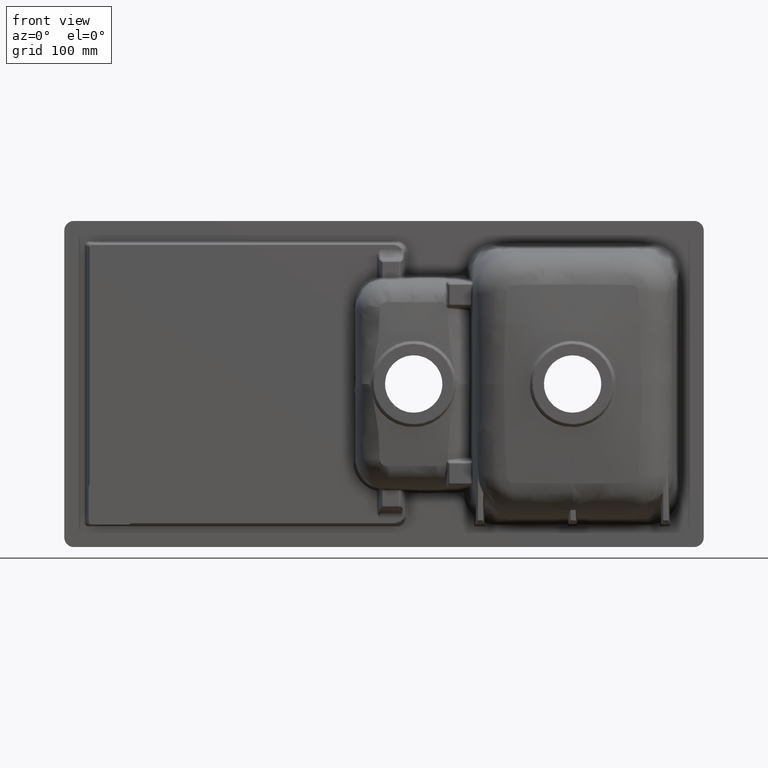
[diagram: clean part render]
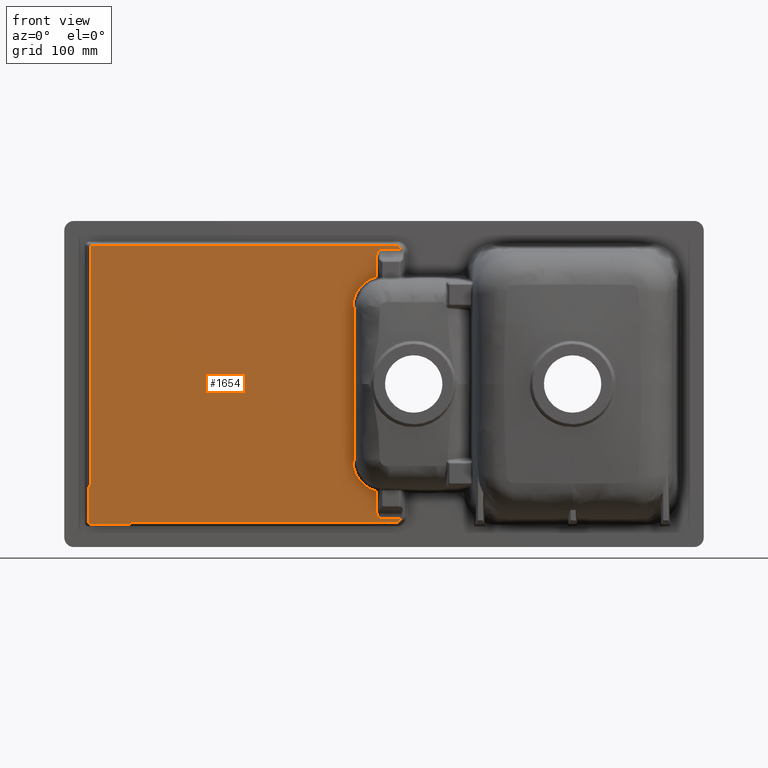
[diagram: same view with one face highlighted and labeled with its STEP entity id]
A machine part, front view. The second image highlights one B-rep face of the part: STEP entity #1654.
In plain terms, the highlighted face is a freeform B-spline surface patch.
Its self-contained STEP definition (entity closure, byte-faithful):
#1654=ADVANCED_FACE('',(#2189),#1732,.T.);
#1732=B_SPLINE_SURFACE_WITH_KNOTS('',1,1,((#62614,#62615),(#62616,#62617)),
 .UNSPECIFIED.,.F.,.F.,.F.,(2,2),(2,2),(0.,1.),(0.,1.),.UNSPECIFIED.);
#2189=FACE_OUTER_BOUND('',#2670,.T.);
#2670=EDGE_LOOP('',(#5322,#5323,#5324,#5325,#5326,#5327,#5328,#5329,#5330,
#5331,#5332,#5333,#5334,#5335,#5336,#5337,#5338,#5339,#5340,#5341,#5342,
#5343,#5344,#5345,#5346));
#3142=B_SPLINE_CURVE_WITH_KNOTS('',3,(#59644,#59645,#59646,#59647,#59648,
#59649,#59650,#59651,#59652,#59653,#59654,#59655,#59656,#59657,#59658),
 .UNSPECIFIED.,.F.,.F.,(4,1,1,2,2,1,2,2,4),(0.,0.125000000000009,0.187500000000012,
0.218750000000012,0.250000000000012,0.375000000000017,0.437500000000016,
0.500000000000016,1.),.UNSPECIFIED.);
#3145=B_SPLINE_CURVE_WITH_KNOTS('',3,(#59697,#59698,#59699,#59700,#59701,
#59702,#59703,#59704,#59705,#59706),.UNSPECIFIED.,.F.,.F.,(4,2,2,2,4),(0.,
0.25,0.5,0.75,1.),.UNSPECIFIED.);
#3146=B_SPLINE_CURVE_WITH_KNOTS('',3,(#59743,#59744,#59745,#59746,#59747,
#59748,#59749,#59750,#59751,#59752,#59753,#59754,#59755,#59756,#59757),
 .UNSPECIFIED.,.F.,.F.,(4,1,1,2,2,1,2,2,4),(0.,0.125000000000005,0.187500000000008,
0.218750000000006,0.250000000000005,0.375000000000004,0.4375,0.499999999999997,
1.),.UNSPECIFIED.);
#3147=B_SPLINE_CURVE_WITH_KNOTS('',1,(#59778,#59779),.UNSPECIFIED.,.F.,
 .F.,(2,2),(0.,1.),.UNSPECIFIED.);
#3148=B_SPLINE_CURVE_WITH_KNOTS('',1,(#59781,#59782),.UNSPECIFIED.,.F.,
 .F.,(2,2),(0.,1.),.UNSPECIFIED.);
#3149=B_SPLINE_CURVE_WITH_KNOTS('',1,(#59786,#59787),.UNSPECIFIED.,.F.,
 .F.,(2,2),(0.,1.),.UNSPECIFIED.);
#3150=B_SPLINE_CURVE_WITH_KNOTS('',3,(#59793,#59794,#59795,#59796,#59797,
#59798),.UNSPECIFIED.,.F.,.F.,(4,2,4),(0.,0.5,1.),.UNSPECIFIED.);
#3151=B_SPLINE_CURVE_WITH_KNOTS('',3,(#59820,#59821,#59822,#59823,#59824,
#59825,#59826,#59827,#59828,#59829,#59830,#59831),.UNSPECIFIED.,.F.,.F.,
(4,2,2,2,2,4),(0.,0.124999999999998,0.249999999999996,0.374999999999994,
0.499999999999992,1.),.UNSPECIFIED.);
#3152=B_SPLINE_CURVE_WITH_KNOTS('',1,(#59846,#59847),.UNSPECIFIED.,.F.,
 .F.,(2,2),(0.,1.),.UNSPECIFIED.);
#3153=B_SPLINE_CURVE_WITH_KNOTS('',3,(#59854,#59855,#59856,#59857,#59858,
#59859),.UNSPECIFIED.,.F.,.F.,(4,2,4),(0.,0.5,1.),.UNSPECIFIED.);
#3154=B_SPLINE_CURVE_WITH_KNOTS('',1,(#59861,#59862),.UNSPECIFIED.,.F.,
 .F.,(2,2),(0.,1.),.UNSPECIFIED.);
#3155=B_SPLINE_CURVE_WITH_KNOTS('',3,(#59866,#59867,#59868,#59869,#59870,
#59871,#59872,#59873,#59874,#59875,#59876,#59877,#59878,#59879),
 .UNSPECIFIED.,.F.,.F.,(4,1,2,2,1,2,2,4),(0.,0.250000000000027,0.375000000000027,
0.500000000000027,0.625000000000027,0.687500000000016,0.750000000000005,
1.),.UNSPECIFIED.);
#3156=B_SPLINE_CURVE_WITH_KNOTS('',3,(#59894,#59895,#59896,#59897,#59898,
#59899),.UNSPECIFIED.,.F.,.F.,(4,2,4),(0.,0.5,1.),.UNSPECIFIED.);
#3157=B_SPLINE_CURVE_WITH_KNOTS('',1,(#59920,#59921),.UNSPECIFIED.,.F.,
 .F.,(2,2),(0.,1.),.UNSPECIFIED.);
#3158=B_SPLINE_CURVE_WITH_KNOTS('',3,(#59925,#59926,#59927,#59928),
 .UNSPECIFIED.,.F.,.F.,(4,4),(0.,1.),.UNSPECIFIED.);
#3159=B_SPLINE_CURVE_WITH_KNOTS('',1,(#59947,#59948),.UNSPECIFIED.,.F.,
 .F.,(2,2),(0.,1.),.UNSPECIFIED.);
#3160=B_SPLINE_CURVE_WITH_KNOTS('',1,(#59950,#59951),.UNSPECIFIED.,.F.,
 .F.,(2,2),(0.,1.),.UNSPECIFIED.);
#3161=B_SPLINE_CURVE_WITH_KNOTS('',1,(#59955,#59956),.UNSPECIFIED.,.F.,
 .F.,(2,2),(0.,1.),.UNSPECIFIED.);
#3162=B_SPLINE_CURVE_WITH_KNOTS('',3,(#59958,#59959,#59960,#59961,#59962,
#59963,#59964,#59965,#59966,#59967,#59968,#59969,#59970,#59971,#59972,#59973),
 .UNSPECIFIED.,.F.,.F.,(4,1,1,2,2,1,1,2,2,4),(0.,0.249999999999992,0.374999999999992,
0.437499999999991,0.499999999999991,0.624999999999996,0.687499999999999,
0.71875,0.750000000000001,1.),.UNSPECIFIED.);
#3173=B_SPLINE_CURVE_WITH_KNOTS('',3,(#62208,#62209,#62210,#62211,#62212,
#62213,#62214,#62215,#62216,#62217),.UNSPECIFIED.,.F.,.F.,(4,2,2,2,4),(0.,
0.25,0.5,0.75,1.),.UNSPECIFIED.);
#3174=B_SPLINE_CURVE_WITH_KNOTS('',3,(#62260,#62261,#62262,#62263,#62264,
#62265,#62266,#62267,#62268,#62269,#62270,#62271,#62272,#62273,#62274,#62275),
 .UNSPECIFIED.,.F.,.F.,(4,1,1,2,2,1,1,2,2,4),(0.,0.250000000000001,0.375000000000002,
0.437499999999999,0.499999999999995,0.624999999999986,0.687499999999981,
0.718749999999976,0.749999999999972,1.),.UNSPECIFIED.);
#3179=B_SPLINE_CURVE_WITH_KNOTS('',1,(#62329,#62330),.UNSPECIFIED.,.F.,
 .F.,(2,2),(0.,1.),.UNSPECIFIED.);
#3180=B_SPLINE_CURVE_WITH_KNOTS('',3,(#62332,#62333,#62334,#62335),
 .UNSPECIFIED.,.F.,.F.,(4,4),(0.,1.),.UNSPECIFIED.);
#3182=B_SPLINE_CURVE_WITH_KNOTS('',3,(#62599,#62600,#62601,#62602,#62603,
#62604,#62605,#62606,#62607,#62608),.UNSPECIFIED.,.F.,.F.,(4,2,2,1,1,4),
(0.,0.0624999999999999,0.125,0.25,0.5,1.),.UNSPECIFIED.);
#3183=B_SPLINE_CURVE_WITH_KNOTS('',3,(#62610,#62611,#62612,#62613),
 .UNSPECIFIED.,.F.,.F.,(4,4),(0.,1.),.UNSPECIFIED.);
#5322=ORIENTED_EDGE('',*,*,#7077,.F.);
#5323=ORIENTED_EDGE('',*,*,#7069,.T.);
#5324=ORIENTED_EDGE('',*,*,#7068,.T.);
#5325=ORIENTED_EDGE('',*,*,#7055,.T.);
#5326=ORIENTED_EDGE('',*,*,#7056,.T.);
#5327=ORIENTED_EDGE('',*,*,#7053,.T.);
#5328=ORIENTED_EDGE('',*,*,#7047,.T.);
#5329=ORIENTED_EDGE('',*,*,#7049,.T.);
#5330=ORIENTED_EDGE('',*,*,#7051,.T.);
#5331=ORIENTED_EDGE('',*,*,#7052,.T.);
#5332=ORIENTED_EDGE('',*,*,#7036,.T.);
#5333=ORIENTED_EDGE('',*,*,#7038,.T.);
#5334=ORIENTED_EDGE('',*,*,#7042,.T.);
#5335=ORIENTED_EDGE('',*,*,#7043,.T.);
#5336=ORIENTED_EDGE('',*,*,#7045,.T.);
#5337=ORIENTED_EDGE('',*,*,#7031,.T.);
#5338=ORIENTED_EDGE('',*,*,#7034,.T.);
#5339=ORIENTED_EDGE('',*,*,#7029,.T.);
#5340=ORIENTED_EDGE('',*,*,#7026,.T.);
#5341=ORIENTED_EDGE('',*,*,#7028,.T.);
#5342=ORIENTED_EDGE('',*,*,#7025,.T.);
#5343=ORIENTED_EDGE('',*,*,#7021,.T.);
#5344=ORIENTED_EDGE('',*,*,#7075,.T.);
#5345=ORIENTED_EDGE('',*,*,#7074,.T.);
#5346=ORIENTED_EDGE('',*,*,#7078,.F.);
#5927=VERTEX_POINT('',#54820);
#5930=VERTEX_POINT('',#54867);
#5931=VERTEX_POINT('',#54904);
#5942=VERTEX_POINT('',#55043);
#5943=VERTEX_POINT('',#55076);
#5959=VERTEX_POINT('',#57433);
#5963=VERTEX_POINT('',#59659);
#5964=VERTEX_POINT('',#59660);
#5966=VERTEX_POINT('',#59758);
#5967=VERTEX_POINT('',#59785);
#5968=VERTEX_POINT('',#59788);
#5970=VERTEX_POINT('',#59818);
#5972=VERTEX_POINT('',#59832);
#5973=VERTEX_POINT('',#59848);
#5974=VERTEX_POINT('',#59853);
#5975=VERTEX_POINT('',#59863);
#5976=VERTEX_POINT('',#59893);
#5977=VERTEX_POINT('',#59919);
#5978=VERTEX_POINT('',#59924);
#5979=VERTEX_POINT('',#59954);
#5983=VERTEX_POINT('',#62190);
#5984=VERTEX_POINT('',#62276);
#5987=VERTEX_POINT('',#62328);
#5988=VERTEX_POINT('',#62331);
#5989=VERTEX_POINT('',#62609);
#7021=EDGE_CURVE('',#5963,#5964,#3142,.T.);
#7025=EDGE_CURVE('',#5927,#5963,#3145,.T.);
#7026=EDGE_CURVE('',#5930,#5966,#3146,.T.);
#7028=EDGE_CURVE('',#5966,#5927,#3147,.T.);
#7029=EDGE_CURVE('',#5931,#5930,#3148,.T.);
#7031=EDGE_CURVE('',#5968,#5967,#3149,.T.);
#7034=EDGE_CURVE('',#5967,#5931,#3150,.T.);
#7036=EDGE_CURVE('',#5972,#5970,#3151,.T.);
#7038=EDGE_CURVE('',#5970,#5973,#3152,.T.);
#7042=EDGE_CURVE('',#5973,#5974,#3153,.T.);
#7043=EDGE_CURVE('',#5974,#5975,#3154,.T.);
#7045=EDGE_CURVE('',#5975,#5968,#3155,.T.);
#7047=EDGE_CURVE('',#5942,#5976,#3156,.T.);
#7049=EDGE_CURVE('',#5976,#5977,#3157,.T.);
#7051=EDGE_CURVE('',#5977,#5978,#3158,.T.);
#7052=EDGE_CURVE('',#5978,#5972,#3159,.T.);
#7053=EDGE_CURVE('',#5943,#5942,#3160,.T.);
#7055=EDGE_CURVE('',#5959,#5979,#3161,.T.);
#7056=EDGE_CURVE('',#5979,#5943,#3162,.T.);
#7068=EDGE_CURVE('',#5983,#5959,#3173,.T.);
#7069=EDGE_CURVE('',#5984,#5983,#3174,.T.);
#7074=EDGE_CURVE('',#5988,#5987,#3179,.T.);
#7075=EDGE_CURVE('',#5964,#5988,#3180,.T.);
#7077=EDGE_CURVE('',#5984,#5989,#3182,.T.);
#7078=EDGE_CURVE('',#5989,#5987,#3183,.T.);
#54820=CARTESIAN_POINT('',(-11.7151476744344,-38.,-167.615659978498));
#54867=CARTESIAN_POINT('',(-6.68054988734357,-38.0000091059767,-210.586491127443));
#54904=CARTESIAN_POINT('',(26.9064370518657,-37.9999999999997,-210.586491124832));
#55043=CARTESIAN_POINT('',(26.9064370518648,-37.9999999999994,210.586497810487));
#55076=CARTESIAN_POINT('',(-6.68054988734357,-38.0000091059767,210.586497813098));
#57433=CARTESIAN_POINT('',(-11.7151476744342,-37.999999999998,167.615666664153));
#59644=CARTESIAN_POINT('',(-48.7016288514567,-38.,-122.719712885353));
#59645=CARTESIAN_POINT('',(-48.4643740971818,-38.,-122.446297535337));
#59646=CARTESIAN_POINT('',(-48.1664875489691,-38.,-122.101039486296));
#59647=CARTESIAN_POINT('',(-47.9204455133205,-38.,-121.811752137053));
#59648=CARTESIAN_POINT('',(-47.8367472703138,-38.,-121.712096210514));
#59649=CARTESIAN_POINT('',(-47.7857814069093,-38.,-121.651064340821));
#59650=CARTESIAN_POINT('',(-47.7871373702971,-38.,-121.652948957261));
#59651=CARTESIAN_POINT('',(-47.5617754758354,-38.,-121.378907136579));
#59652=CARTESIAN_POINT('',(-47.3171734965612,-38.,-121.066040474205));
#59653=CARTESIAN_POINT('',(-47.1113199584067,-38.,-120.777149095498));
#59654=CARTESIAN_POINT('',(-46.9826950309971,-38.,-120.589882683842));
#59655=CARTESIAN_POINT('',(-46.9408501198007,-38.,-120.52770636334));
#59656=CARTESIAN_POINT('',(-46.276075297242,-38.,-119.473821393953));
#59657=CARTESIAN_POINT('',(-45.9775401941978,-38.,-118.54954956743));
#59658=CARTESIAN_POINT('',(-45.971380941495,-38.,-117.637792553838));
#59659=CARTESIAN_POINT('',(-48.7016288514566,-38.,-122.719712885353));
#59660=CARTESIAN_POINT('',(-45.9705455702488,-37.9972944307284,-117.629735153039));
#59697=CARTESIAN_POINT('',(-11.7151476744349,-38.,-167.615659978498));
#59698=CARTESIAN_POINT('',(-16.7427983676677,-38.,-166.255751429267));
#59699=CARTESIAN_POINT('',(-21.4588855612515,-38.,-164.153832258311));
#59700=CARTESIAN_POINT('',(-30.2285205324976,-38.,-158.491420633643));
#59701=CARTESIAN_POINT('',(-34.0740891963813,-38.,-155.067569900544));
#59702=CARTESIAN_POINT('',(-40.6833545852516,-38.,-147.03867766475));
#59703=CARTESIAN_POINT('',(-43.298322350012,-38.,-142.624490526237));
#59704=CARTESIAN_POINT('',(-47.166455743182,-38.,-132.952808791125));
#59705=CARTESIAN_POINT('',(-48.3228690114686,-38.,-127.929829866683));
#59706=CARTESIAN_POINT('',(-48.7016288514566,-38.,-122.719712885354));
#59743=CARTESIAN_POINT('',(-6.68054988737035,-38.,-210.586491124832));
#59744=CARTESIAN_POINT('',(-7.05047012392503,-38.,-210.063198594091));
#59745=CARTESIAN_POINT('',(-7.56265972795954,-38.,-209.316783022869));
#59746=CARTESIAN_POINT('',(-8.08550545210419,-38.,-208.5133805));
#59747=CARTESIAN_POINT('',(-8.29357315947426,-38.,-208.183511342389));
#59748=CARTESIAN_POINT('',(-8.42872740182119,-38.,-207.96680883939));
#59749=CARTESIAN_POINT('',(-8.47942339129494,-38.,-207.884865704338));
#59750=CARTESIAN_POINT('',(-8.87503293641232,-38.,-207.235145880155));
#59751=CARTESIAN_POINT('',(-9.3117847650975,-38.,-206.471427437968));
#59752=CARTESIAN_POINT('',(-9.69156715559921,-38.,-205.731627016033));
#59753=CARTESIAN_POINT('',(-9.93209554078179,-38.,-205.243741850355));
#59754=CARTESIAN_POINT('',(-10.0235079831367,-38.,-205.052402062096));
#59755=CARTESIAN_POINT('',(-11.1946431540348,-38.,-202.455247726069));
#59756=CARTESIAN_POINT('',(-11.715147674434,-38.,-200.260797704121));
#59757=CARTESIAN_POINT('',(-11.715147674434,-38.,-198.180479292252));
#59758=CARTESIAN_POINT('',(-11.715147674434,-38.,-198.180479292252));
#59778=CARTESIAN_POINT('',(-11.715147674434,-38.,-198.180479292252));
#59779=CARTESIAN_POINT('',(-11.715147674434,-38.,-167.615659978498));
#59781=CARTESIAN_POINT('',(26.9064370518656,-38.,-210.586491124832));
#59782=CARTESIAN_POINT('',(-6.68054988737035,-38.,-210.586491124832));
#59785=CARTESIAN_POINT('',(16.296990552605,-37.9999999999991,-216.755216585906));
#59786=CARTESIAN_POINT('',(-394.883134961742,-38.,-216.755216585905));
#59787=CARTESIAN_POINT('',(16.296990552605,-38.,-216.755216585905));
#59788=CARTESIAN_POINT('',(-394.883134961738,-38.,-216.755216585905));
#59793=CARTESIAN_POINT('',(16.296990552605,-38.,-216.755216585907));
#59794=CARTESIAN_POINT('',(18.468204253391,-38.,-216.755216585907));
#59795=CARTESIAN_POINT('',(20.5976525929738,-38.,-216.182933996951));
#59796=CARTESIAN_POINT('',(24.327223634936,-38.,-214.014627411531));
#59797=CARTESIAN_POINT('',(25.8618503339645,-38.,-212.45667099961));
#59798=CARTESIAN_POINT('',(26.9064370518663,-38.,-210.586491124832));
#59818=CARTESIAN_POINT('',(-461.893735793157,-37.999991979117,-162.778509867671));
#59820=CARTESIAN_POINT('',(-459.376434728759,-38.,-157.920232102757));
#59821=CARTESIAN_POINT('',(-459.570143872033,-38.,-158.11125208217));
#59822=CARTESIAN_POINT('',(-459.746747982477,-38.,-158.292553251097));
#59823=CARTESIAN_POINT('',(-460.065746137709,-38.,-158.635717967976));
#59824=CARTESIAN_POINT('',(-460.175005879408,-38.,-158.757344868152));
#59825=CARTESIAN_POINT('',(-460.491852509503,-38.,-159.14210763864));
#59826=CARTESIAN_POINT('',(-460.637894627337,-38.,-159.334380504641));
#59827=CARTESIAN_POINT('',(-460.905216468574,-38.,-159.718709198155));
#59828=CARTESIAN_POINT('',(-461.008961820395,-38.,-159.879858496946));
#59829=CARTESIAN_POINT('',(-461.64112630926,-38.,-160.994127681917));
#59830=CARTESIAN_POINT('',(-461.893907221919,-38.,-161.886057913271));
#59831=CARTESIAN_POINT('',(-461.893737456144,-38.,-162.778503028001));
#59832=CARTESIAN_POINT('',(-459.376434729145,-38.,-157.920232103137));
#59846=CARTESIAN_POINT('',(-461.893733622291,-38.,-162.778518796184));
#59847=CARTESIAN_POINT('',(-461.893733622291,-38.,-214.679554828756));
#59848=CARTESIAN_POINT('',(-461.893733622291,-38.,-214.679554828756));
#59853=CARTESIAN_POINT('',(-456.847369177271,-38.,-219.652282910326));
#59854=CARTESIAN_POINT('',(-461.893733622291,-38.,-214.679554828756));
#59855=CARTESIAN_POINT('',(-461.893733622291,-38.,-216.000827624413));
#59856=CARTESIAN_POINT('',(-461.362474451403,-38.,-217.266294879903));
#59857=CARTESIAN_POINT('',(-459.472600937671,-38.,-219.128960278067));
#59858=CARTESIAN_POINT('',(-458.188899848805,-38.,-219.652282910326));
#59859=CARTESIAN_POINT('',(-456.847369177271,-38.,-219.652282910326));
#59861=CARTESIAN_POINT('',(-456.84736917727,-38.,-219.652282910326));
#59862=CARTESIAN_POINT('',(-400.017416536164,-38.,-219.652282910326));
#59863=CARTESIAN_POINT('',(-400.017403198161,-37.9999838050504,-219.652283680252));
#59866=CARTESIAN_POINT('',(-400.017395010404,-38.,-219.652284152581));
#59867=CARTESIAN_POINT('',(-399.550323263968,-38.,-219.652313253621));
#59868=CARTESIAN_POINT('',(-398.844528588026,-38.,-219.537036935826));
#59869=CARTESIAN_POINT('',(-398.130953327649,-38.,-219.248780663998));
#59870=CARTESIAN_POINT('',(-397.653507468635,-38.,-219.018169826327));
#59871=CARTESIAN_POINT('',(-397.368063157596,-38.,-218.854323445988));
#59872=CARTESIAN_POINT('',(-396.978873005357,-38.,-218.60547456197));
#59873=CARTESIAN_POINT('',(-396.68287564159,-38.,-218.396875686611));
#59874=CARTESIAN_POINT('',(-396.380721153441,-38.,-218.155333492735));
#59875=CARTESIAN_POINT('',(-396.177916578146,-38.,-217.986984626036));
#59876=CARTESIAN_POINT('',(-396.044840189779,-38.,-217.871559882366));
#59877=CARTESIAN_POINT('',(-395.685937381164,-38.,-217.552033736356));
#59878=CARTESIAN_POINT('',(-395.322629159057,-38.,-217.201221047269));
#59879=CARTESIAN_POINT('',(-394.883134961735,-38.,-216.755216585905));
#59893=CARTESIAN_POINT('',(16.296990552605,-37.9999999999991,216.755223271559));
#59894=CARTESIAN_POINT('',(26.9064370518644,-38.,210.586497810487));
#59895=CARTESIAN_POINT('',(25.8621765017067,-38.,212.456093729579));
#59896=CARTESIAN_POINT('',(24.3271324615937,-38.,214.014482844006));
#59897=CARTESIAN_POINT('',(20.5977437663127,-38.,216.18309193578));
#59898=CARTESIAN_POINT('',(18.4688824172058,-38.,216.755223271558));
#59899=CARTESIAN_POINT('',(16.296990552605,-38.,216.755223271558));
#59919=CARTESIAN_POINT('',(-457.357888950751,-38.,216.75522327156));
#59920=CARTESIAN_POINT('',(16.296990552605,-38.,216.75522327156));
#59921=CARTESIAN_POINT('',(-457.357888950751,-38.,216.75522327156));
#59924=CARTESIAN_POINT('',(-459.376434728759,-38.,214.766132038932));
#59925=CARTESIAN_POINT('',(-457.357888950751,-38.,216.75522327156));
#59926=CARTESIAN_POINT('',(-458.430143761661,-38.,216.75522327156));
#59927=CARTESIAN_POINT('',(-459.376434728759,-38.,215.8241051676));
#59928=CARTESIAN_POINT('',(-459.376434728759,-38.,214.766132038932));
#59947=CARTESIAN_POINT('',(-459.376434728759,-38.,214.766132038932));
#59948=CARTESIAN_POINT('',(-459.376434728759,-38.,-157.920232102757));
#59950=CARTESIAN_POINT('',(-6.68054988737034,-38.,210.586497810487));
#59951=CARTESIAN_POINT('',(26.9064370518647,-38.,210.586497810487));
#59954=CARTESIAN_POINT('',(-11.715147674434,-38.,198.180485977907));
#59955=CARTESIAN_POINT('',(-11.715147674434,-38.,167.615666664153));
#59956=CARTESIAN_POINT('',(-11.715147674434,-38.,198.180485977907));
#59958=CARTESIAN_POINT('',(-11.715147674434,-38.,198.180485977907));
#59959=CARTESIAN_POINT('',(-11.715147674434,-38.,199.220511677244));
#59960=CARTESIAN_POINT('',(-11.5199584792843,-38.,200.823449709977));
#59961=CARTESIAN_POINT('',(-10.9506566600977,-38.,202.768618178021));
#59962=CARTESIAN_POINT('',(-10.6334742179795,-38.,203.618349113581));
#59963=CARTESIAN_POINT('',(-10.4057534903049,-38.,204.188411360932));
#59964=CARTESIAN_POINT('',(-10.2611624894958,-38.,204.52534940615));
#59965=CARTESIAN_POINT('',(-9.93857736071791,-38.,205.240809318944));
#59966=CARTESIAN_POINT('',(-9.57789869471417,-38.,205.972425823016));
#59967=CARTESIAN_POINT('',(-9.09044322756467,-38.,206.85425244584));
#59968=CARTESIAN_POINT('',(-8.86724866518379,-38.,207.238236863066));
#59969=CARTESIAN_POINT('',(-8.71527782882771,-38.,207.495572857156));
#59970=CARTESIAN_POINT('',(-8.6225362652947,-38.,207.649827891208));
#59971=CARTESIAN_POINT('',(-8.04661758050813,-38.,208.595732696747));
#59972=CARTESIAN_POINT('',(-7.42061910952544,-38.,209.539589158524));
#59973=CARTESIAN_POINT('',(-6.68054988737035,-38.,210.586497810487));
#62190=CARTESIAN_POINT('',(-48.7016288511004,-38.,122.719719570596));
#62208=CARTESIAN_POINT('',(-48.7016288514566,-38.,122.719719571008));
#62209=CARTESIAN_POINT('',(-48.3228931002219,-38.,127.929505194027));
#62210=CARTESIAN_POINT('',(-47.1632115495386,-38.,132.960656421958));
#62211=CARTESIAN_POINT('',(-43.3015805498569,-38.,142.616621245349));
#62212=CARTESIAN_POINT('',(-40.6834349766399,-38.,147.038427253851));
#62213=CARTESIAN_POINT('',(-34.0740295369704,-38.,155.067808497175));
#62214=CARTESIAN_POINT('',(-30.2347984639639,-38.,158.487247085198));
#62215=CARTESIAN_POINT('',(-21.4526347886534,-38.,164.157990752935));
#62216=CARTESIAN_POINT('',(-16.7431118046953,-38.,166.25567333463));
#62217=CARTESIAN_POINT('',(-11.7151476744343,-38.,167.615666664153));
#62260=CARTESIAN_POINT('',(-45.9714124816904,-38.,117.64309704261));
#62261=CARTESIAN_POINT('',(-45.9749491361763,-38.,118.096210044021));
#62262=CARTESIAN_POINT('',(-46.0897374729352,-38.,118.782245847696));
#62263=CARTESIAN_POINT('',(-46.4152530704568,-38.,119.593761979713));
#62264=CARTESIAN_POINT('',(-46.5958160132452,-38.,119.943941970804));
#62265=CARTESIAN_POINT('',(-46.7253149213567,-38.,120.177925823328));
#62266=CARTESIAN_POINT('',(-46.8128822485442,-38.,120.32422604226));
#62267=CARTESIAN_POINT('',(-46.9797332494523,-38.,120.589664306122));
#62268=CARTESIAN_POINT('',(-47.1725650228657,-38.,120.870588352322));
#62269=CARTESIAN_POINT('',(-47.4430017770656,-38.,121.225433191981));
#62270=CARTESIAN_POINT('',(-47.5686460328408,-38.,121.383316720212));
#62271=CARTESIAN_POINT('',(-47.6545739343997,-38.,121.489862887561));
#62272=CARTESIAN_POINT('',(-47.723999325065,-38.,121.574465765965));
#62273=CARTESIAN_POINT('',(-47.9017502921754,-38.,121.789376871597));
#62274=CARTESIAN_POINT('',(-48.2210434318204,-38.,122.163168469366));
#62275=CARTESIAN_POINT('',(-48.7016288514565,-38.,122.719719571009));
#62276=CARTESIAN_POINT('',(-45.9703150265279,-37.9987795034201,117.631408086113));
#62328=CARTESIAN_POINT('',(-45.9693013077668,-37.9999923326999,5.28381216550437E-6));
#62329=CARTESIAN_POINT('',(-45.969283156303,-38.,-4.19064809466713));
#62330=CARTESIAN_POINT('',(-45.969283156303,-38.,5.2838121543039E-6));
#62331=CARTESIAN_POINT('',(-45.9692831913209,-37.9999968104644,-4.19064809466715));
#62332=CARTESIAN_POINT('',(-45.9696010029415,-38.,-117.637801506964));
#62333=CARTESIAN_POINT('',(-45.9694950690961,-38.,-79.8220837028647));
#62334=CARTESIAN_POINT('',(-45.9693891352508,-38.,-42.006365898766));
#62335=CARTESIAN_POINT('',(-45.9692832014054,-38.,-4.19064809466713));
#62599=CARTESIAN_POINT('',(-45.9692070781387,-37.9982982602468,117.64311425632));
#62600=CARTESIAN_POINT('',(-45.9668004193745,-38.0012725494995,115.351477299909));
#62601=CARTESIAN_POINT('',(-45.9708274676423,-37.9995698454444,112.912413341105));
#62602=CARTESIAN_POINT('',(-45.9700737699143,-37.99924402454,108.187803942611));
#62603=CARTESIAN_POINT('',(-45.9695919041195,-37.9992974857076,105.831850011777));
#62604=CARTESIAN_POINT('',(-45.9685628011395,-37.9992614507364,98.7542355789749));
#62605=CARTESIAN_POINT('',(-45.967072588484,-37.9992404992973,84.592682764127));
#62606=CARTESIAN_POINT('',(-45.9667515807852,-37.9994705460698,51.5113904683157));
#62607=CARTESIAN_POINT('',(-45.9690762538645,-37.9998753994973,23.1140453368602));
#62608=CARTESIAN_POINT('',(-45.9692831112006,-37.9999971528305,4.18394704799253));
#62609=CARTESIAN_POINT('',(-45.9692831224762,-37.9999985764153,4.18394704745004));
#62610=CARTESIAN_POINT('',(-45.9692831112006,-37.9999971528305,4.18394704726921));
#62611=CARTESIAN_POINT('',(-45.9692991764248,-37.9999885202909,2.78928919838049));
#62612=CARTESIAN_POINT('',(-45.9693079524452,-37.999979083617,1.39463926323999));
#62613=CARTESIAN_POINT('',(-45.9693084401609,-37.9999687466552,5.283989478714E-6));
#62614=CARTESIAN_POINT('',(29.8241342825493,-38.,-316.462617753124));
#62615=CARTESIAN_POINT('',(-500.95848309472,-38.,-316.462617753124));
#62616=CARTESIAN_POINT('',(29.8241342825493,-38.,351.143459627374));
#62617=CARTESIAN_POINT('',(-500.95848309472,-38.,351.143459627374));